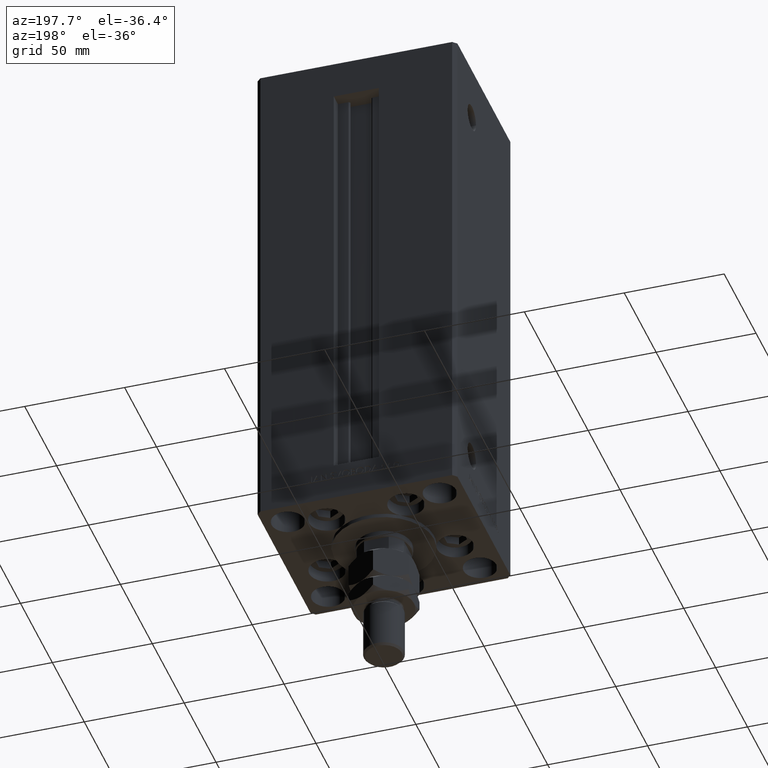
[diagram: clean part render]
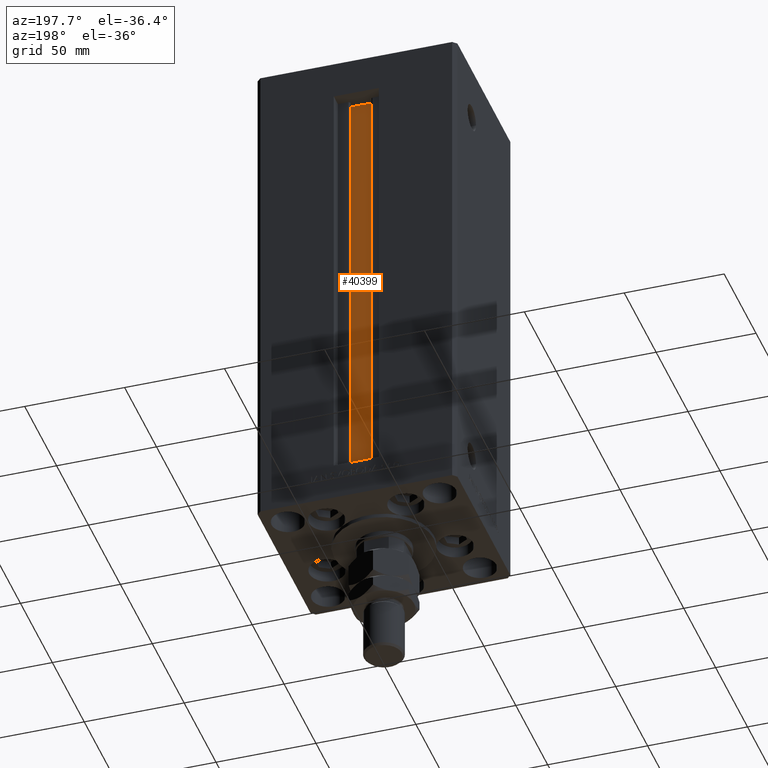
[diagram: same view with one face highlighted and labeled with its STEP entity id]
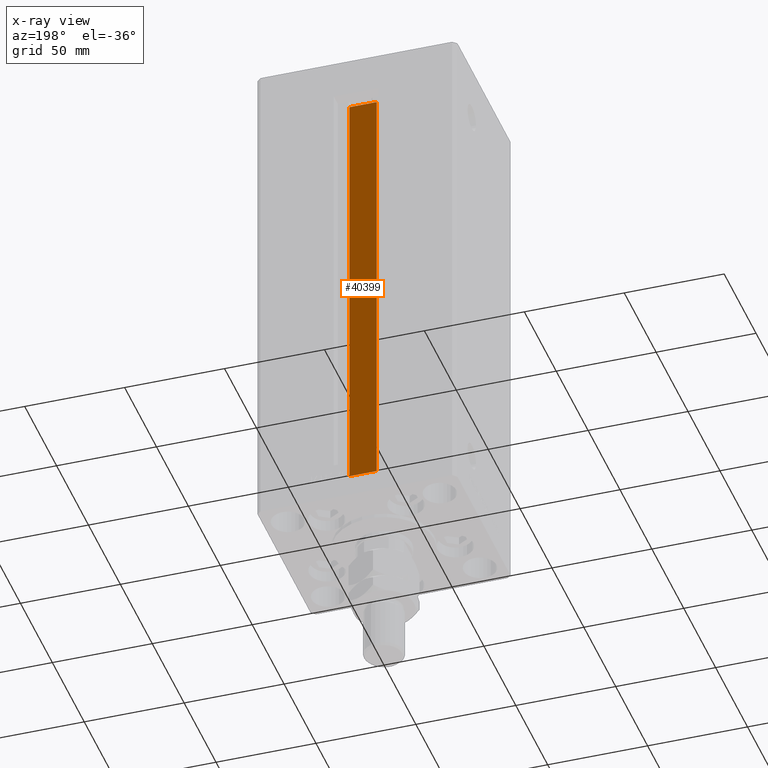
[diagram: x-ray of the same camera — body ghosted, the highlighted face saturated]
A machine part, auxiliary view. The second image highlights one B-rep face of the part: STEP entity #40399.
The next image is the same camera in x-ray: the body ghosted, the highlighted face saturated — about 0% of this face is hidden behind the body in this view.
In plain terms, the highlighted planar face has unit normal (0, -1, 0).
Its self-contained STEP definition (entity closure, byte-faithful):
#170 = CARTESIAN_POINT ( 'NONE',  ( 6.876153656360465050, 32.99999999999986500, 0.000000000000000000 ) ) ;
#1397 = EDGE_CURVE ( 'NONE', #17581, #45299, #12974, .T. ) ;
#2467 = LINE ( 'NONE', #30939, #41092 ) ;
#6161 = CARTESIAN_POINT ( 'NONE',  ( -6.876153656360465050, 32.99999999999986500, 218.5000000000000000 ) ) ;
#6907 = DIRECTION ( 'NONE',  ( -0.000000000000000000, -0.000000000000000000, 1.000000000000000000 ) ) ;
#7700 = EDGE_CURVE ( 'NONE', #10583, #9797, #2467, .T. ) ;
#7764 = PLANE ( 'NONE',  #27322 ) ;
#9531 = CARTESIAN_POINT ( 'NONE',  ( 6.876153656360465050, 32.99999999999986500, 0.000000000000000000 ) ) ;
#9797 = VERTEX_POINT ( 'NONE', #6161 ) ;
#9856 = VECTOR ( 'NONE', #42316, 1000.000000000000000 ) ;
#10583 = VERTEX_POINT ( 'NONE', #24268 ) ;
#12240 = EDGE_CURVE ( 'NONE', #45299, #9797, #13410, .T. ) ;
#12974 = LINE ( 'NONE', #23959, #33335 ) ;
#13410 = LINE ( 'NONE', #45842, #42782 ) ;
#13680 = DIRECTION ( 'NONE',  ( -1.000000000000000000, 0.000000000000000000, 0.000000000000000000 ) ) ;
#16744 = ORIENTED_EDGE ( 'NONE', *, *, #12240, .F. ) ;
#17581 = VERTEX_POINT ( 'NONE', #9531 ) ;
#19779 = DIRECTION ( 'NONE',  ( 0.000000000000000000, 0.000000000000000000, -1.000000000000000000 ) ) ;
#23959 = CARTESIAN_POINT ( 'NONE',  ( 6.876153656360465050, 32.99999999999986500, 0.000000000000000000 ) ) ;
#24268 = CARTESIAN_POINT ( 'NONE',  ( -6.876153656360465050, 32.99999999999986500, 0.000000000000000000 ) ) ;
#26362 = CARTESIAN_POINT ( 'NONE',  ( 6.876153656360465050, 32.99999999999986500, 0.000000000000000000 ) ) ;
#27322 = AXIS2_PLACEMENT_3D ( 'NONE', #170, #47500, #19779 ) ;
#28136 = FACE_OUTER_BOUND ( 'NONE', #45954, .T. ) ;
#30939 = CARTESIAN_POINT ( 'NONE',  ( -6.876153656360465050, 32.99999999999986500, 0.000000000000000000 ) ) ;
#33335 = VECTOR ( 'NONE', #35991, 1000.000000000000000 ) ;
#35991 = DIRECTION ( 'NONE',  ( -0.000000000000000000, -0.000000000000000000, 1.000000000000000000 ) ) ;
#36714 = ORIENTED_EDGE ( 'NONE', *, *, #1397, .F. ) ;
#38339 = CARTESIAN_POINT ( 'NONE',  ( 6.876153656360465050, 32.99999999999986500, 218.5000000000000000 ) ) ;
#40399 = ADVANCED_FACE ( 'NONE', ( #28136 ), #7764, .F. ) ;
#41092 = VECTOR ( 'NONE', #6907, 1000.000000000000000 ) ;
#42316 = DIRECTION ( 'NONE',  ( 1.000000000000000000, -0.000000000000000000, -0.000000000000000000 ) ) ;
#42565 = LINE ( 'NONE', #26362, #9856 ) ;
#42597 = EDGE_CURVE ( 'NONE', #10583, #17581, #42565, .T. ) ;
#42782 = VECTOR ( 'NONE', #13680, 1000.000000000000000 ) ;
#43198 = ORIENTED_EDGE ( 'NONE', *, *, #7700, .T. ) ;
#45299 = VERTEX_POINT ( 'NONE', #38339 ) ;
#45842 = CARTESIAN_POINT ( 'NONE',  ( 0.000000000000000000, 32.99999999999986500, 218.5000000000000000 ) ) ;
#45954 = EDGE_LOOP ( 'NONE', ( #36714, #49739, #43198, #16744 ) ) ;
#47500 = DIRECTION ( 'NONE',  ( 0.000000000000000000, -1.000000000000000000, -0.000000000000000000 ) ) ;
#49739 = ORIENTED_EDGE ( 'NONE', *, *, #42597, .F. ) ;